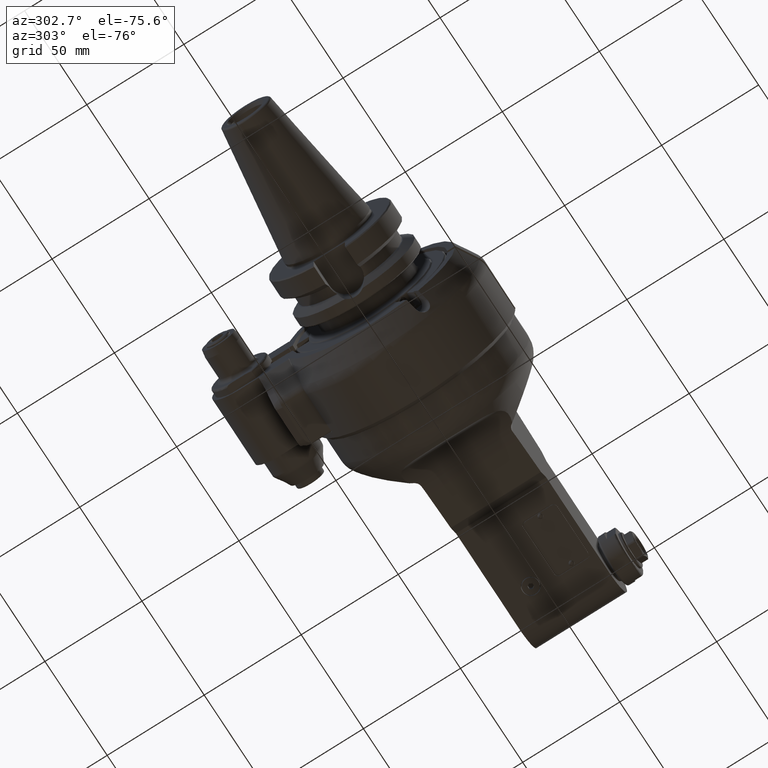
[diagram: clean part render]
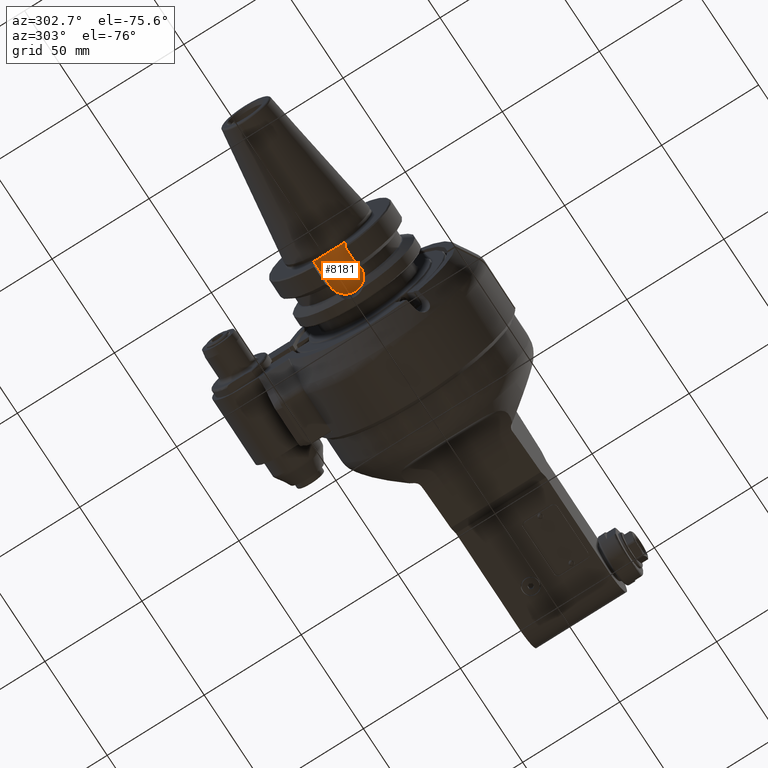
[diagram: same view with one face highlighted and labeled with its STEP entity id]
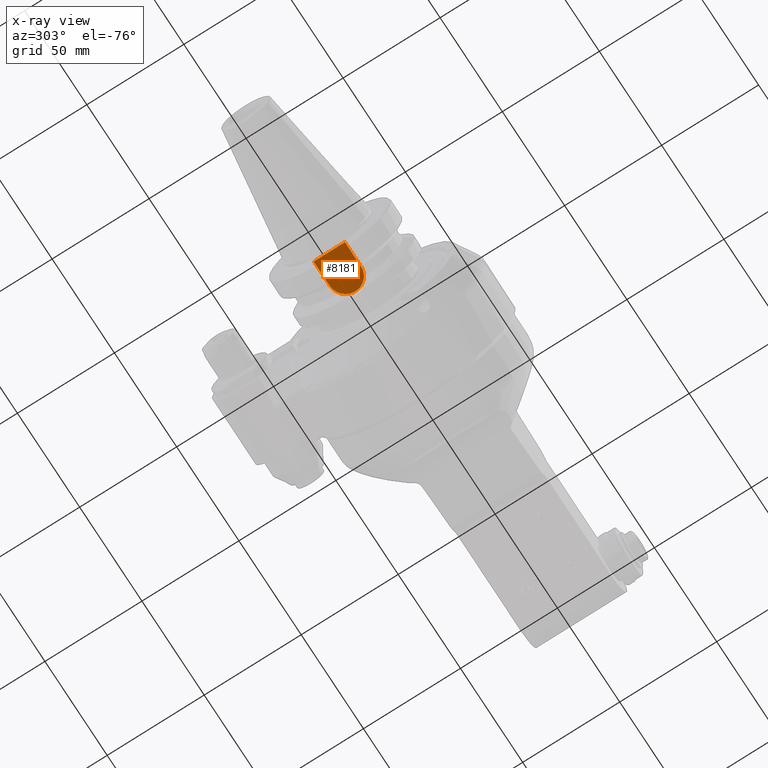
[diagram: x-ray of the same camera — body ghosted, the highlighted face saturated]
A machine part, auxiliary view. The second image highlights one B-rep face of the part: STEP entity #8181.
The next image is the same camera in x-ray: the body ghosted, the highlighted face saturated — about 0% of this face is hidden behind the body in this view.
In plain terms, the highlighted planar face has unit normal (0, 0, 1).
Its self-contained STEP definition (entity closure, byte-faithful):
#928=CIRCLE('',#9054,0.316929133858268);
#1392=FACE_OUTER_BOUND('',#1951,.T.);
#1951=EDGE_LOOP('',(#7097,#7098,#7099,#7100));
#2514=LINE('',#43817,#3086);
#2536=LINE('',#44289,#3108);
#2537=LINE('',#44293,#3109);
#3086=VECTOR('',#11057,0.633858267716536);
#3108=VECTOR('',#11137,0.509842519685039);
#3109=VECTOR('',#11142,0.509842519685039);
#3812=VERTEX_POINT('',#43814);
#3813=VERTEX_POINT('',#43816);
#3850=VERTEX_POINT('',#44287);
#3851=VERTEX_POINT('',#44291);
#4908=EDGE_CURVE('',#3813,#3812,#2514,.T.);
#4964=EDGE_CURVE('',#3850,#3812,#2536,.T.);
#4965=EDGE_CURVE('',#3850,#3851,#928,.T.);
#4966=EDGE_CURVE('',#3851,#3813,#2537,.T.);
#7097=ORIENTED_EDGE('',*,*,#4964,.F.);
#7098=ORIENTED_EDGE('',*,*,#4965,.T.);
#7099=ORIENTED_EDGE('',*,*,#4966,.T.);
#7100=ORIENTED_EDGE('',*,*,#4908,.T.);
#7736=PLANE('',#9053);
#8181=ADVANCED_FACE('',(#1392),#7736,.F.);
#9053=AXIS2_PLACEMENT_3D('',#44290,#11138,#11139);
#9054=AXIS2_PLACEMENT_3D('',#44292,#11140,#11141);
#11057=DIRECTION('',(0.,1.,0.));
#11137=DIRECTION('',(-1.,0.,0.));
#11138=DIRECTION('center_axis',(0.,0.,1.));
#11139=DIRECTION('ref_axis',(1.,0.,0.));
#11140=DIRECTION('center_axis',(0.,0.,-1.));
#11141=DIRECTION('ref_axis',(0.,1.,0.));
#11142=DIRECTION('',(-1.,0.,0.));
#43814=CARTESIAN_POINT('',(-3.30708661417323,0.316929133858268,-0.889763779527559));
#43816=CARTESIAN_POINT('',(-3.30708661417323,-0.316929133858268,-0.889763779527559));
#43817=CARTESIAN_POINT('',(-3.30708661417323,-0.316929133858268,-0.889763779527559));
#44287=CARTESIAN_POINT('',(-2.79724409448819,0.316929133858268,-0.889763779527559));
#44289=CARTESIAN_POINT('',(-2.79724409448819,0.316929133858268,-0.889763779527559));
#44290=CARTESIAN_POINT('Origin',(-2.89370078740157,0.,-0.889763779527559));
#44291=CARTESIAN_POINT('',(-2.79724409448819,-0.316929133858268,-0.889763779527559));
#44292=CARTESIAN_POINT('Origin',(-2.79724409448819,0.,-0.889763779527559));
#44293=CARTESIAN_POINT('',(-2.79724409448819,-0.316929133858268,-0.889763779527559));